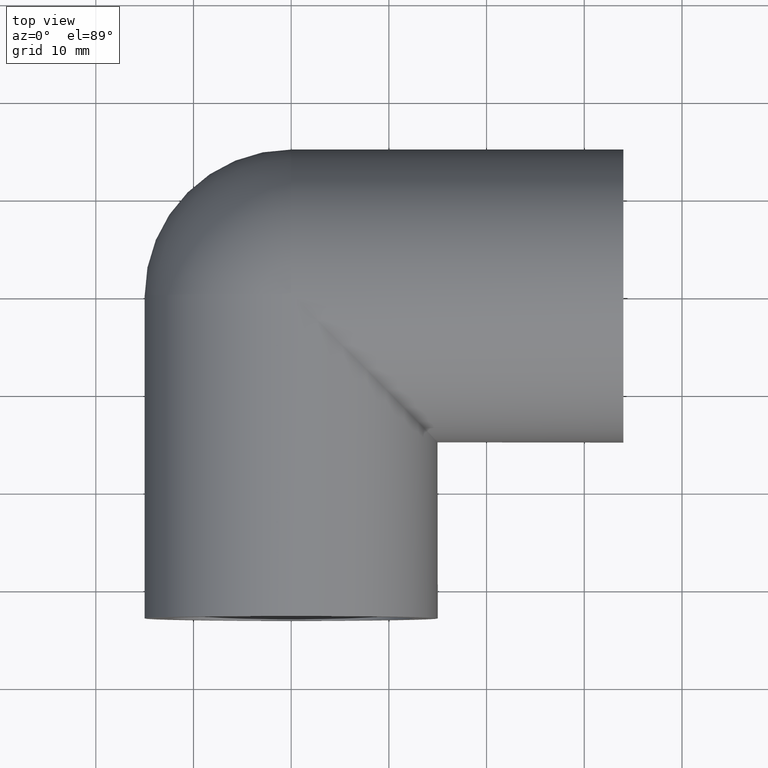
[diagram: clean part render]
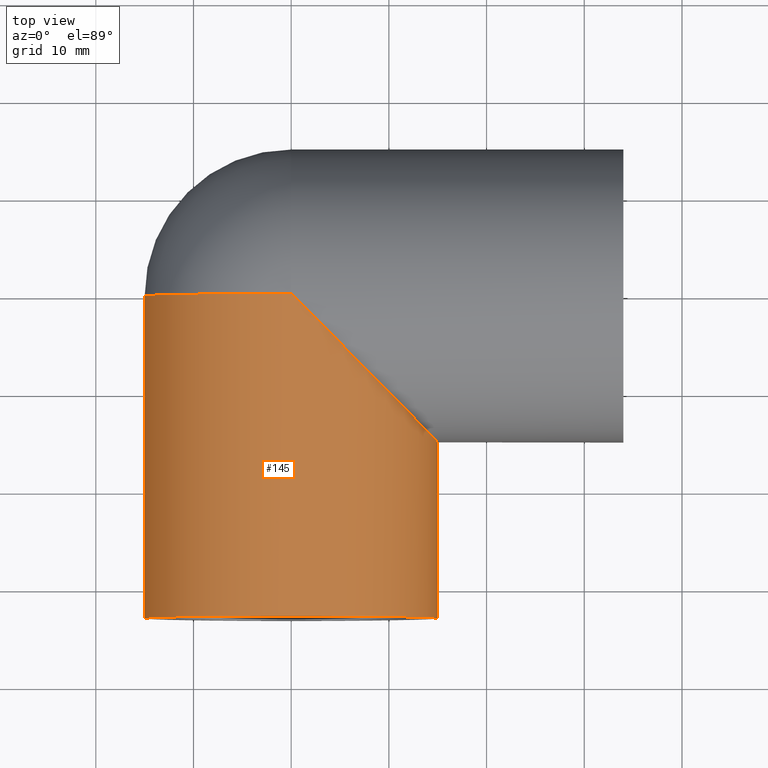
[diagram: same view with one face highlighted and labeled with its STEP entity id]
A machine part, top view. The second image highlights one B-rep face of the part: STEP entity #145.
In plain terms, the highlighted cylindrical surface (bore or boss wall) has radius 15 mm, axis along (-0, 1, 0).
Its self-contained STEP definition (entity closure, byte-faithful):
#15=ELLIPSE('',#171,21.2132034355964,15.);
#29=FACE_BOUND('',#61,.T.);
#41=FACE_OUTER_BOUND('',#60,.T.);
#60=EDGE_LOOP('',(#121));
#61=EDGE_LOOP('',(#122,#123));
#77=CIRCLE('',#168,15.);
#78=CIRCLE('',#170,15.);
#88=VERTEX_POINT('',#253);
#89=VERTEX_POINT('',#254);
#90=VERTEX_POINT('',#258);
#101=EDGE_CURVE('',#88,#89,#77,.T.);
#102=EDGE_CURVE('',#90,#90,#78,.T.);
#103=EDGE_CURVE('',#89,#88,#15,.T.);
#121=ORIENTED_EDGE('',*,*,#102,.T.);
#122=ORIENTED_EDGE('',*,*,#103,.F.);
#123=ORIENTED_EDGE('',*,*,#101,.F.);
#135=CYLINDRICAL_SURFACE('',#169,15.);
#145=ADVANCED_FACE('',(#41,#29),#135,.T.);
#168=AXIS2_PLACEMENT_3D('',#256,#212,#213);
#169=AXIS2_PLACEMENT_3D('',#257,#214,#215);
#170=AXIS2_PLACEMENT_3D('',#259,#216,#217);
#171=AXIS2_PLACEMENT_3D('',#260,#218,#219);
#212=DIRECTION('center_axis',(-1.22464679914735E-16,1.,0.));
#213=DIRECTION('ref_axis',(1.,1.22464679914735E-16,0.));
#214=DIRECTION('center_axis',(-1.22464679914735E-16,1.,0.));
#215=DIRECTION('ref_axis',(-1.,0.,0.));
#216=DIRECTION('center_axis',(-1.22464679914735E-16,1.,0.));
#217=DIRECTION('ref_axis',(1.,1.22464679914735E-16,0.));
#218=DIRECTION('center_axis',(0.707106781186547,0.707106781186548,0.));
#219=DIRECTION('ref_axis',(-0.707106781186548,0.707106781186547,0.));
#253=CARTESIAN_POINT('',(-5.51091059616309E-15,-4.49927934798557E-31,-15.));
#254=CARTESIAN_POINT('',(-5.51091059616309E-15,-4.49927934798557E-31,15.));
#256=CARTESIAN_POINT('Origin',(0.,0.,0.));
#257=CARTESIAN_POINT('Origin',(2.02066721859313E-15,-16.5,0.));
#258=CARTESIAN_POINT('',(-15.,-33.,0.));
#259=CARTESIAN_POINT('Origin',(4.04133443718627E-15,-33.,0.));
#260=CARTESIAN_POINT('Origin',(0.,0.,0.));